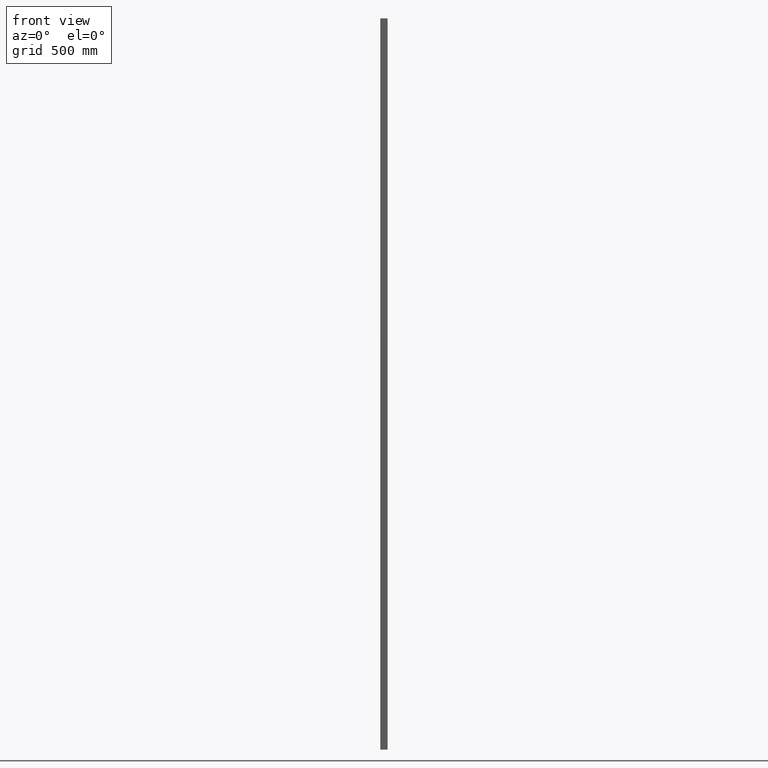
[diagram: clean part render]
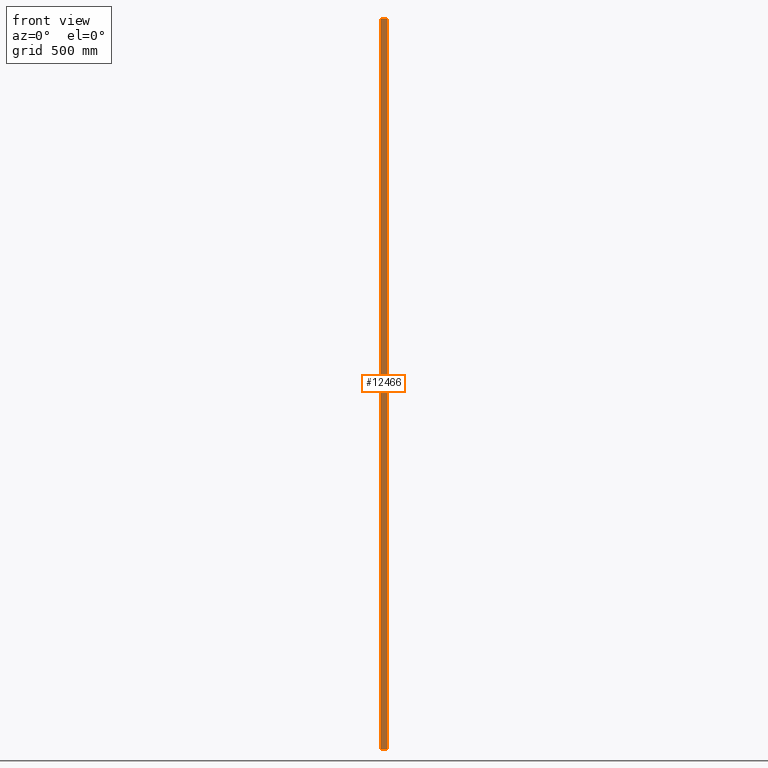
[diagram: same view with one face highlighted and labeled with its STEP entity id]
A machine part, front view. The second image highlights one B-rep face of the part: STEP entity #12466.
In plain terms, the highlighted planar face has unit normal (0, 1, -0).
Its self-contained STEP definition (entity closure, byte-faithful):
#736 = CARTESIAN_POINT ( 'NONE',  ( -11.99999999999999645, -15.00000000000000355, 1500.000000000000000 ) ) ;
#941 = LINE ( 'NONE', #15690, #16377 ) ;
#1060 = EDGE_CURVE ( 'NONE', #9276, #9264, #941, .T. ) ;
#1620 = ORIENTED_EDGE ( 'NONE', *, *, #13072, .T. ) ;
#2455 = EDGE_CURVE ( 'NONE', #14714, #9276, #9043, .T. ) ;
#4556 = CARTESIAN_POINT ( 'NONE',  ( -11.99999999999999645, -15.00000000000000355, 1500.000000000000000 ) ) ;
#5525 = FACE_OUTER_BOUND ( 'NONE', #12804, .T. ) ;
#5760 = DIRECTION ( 'NONE',  ( 1.000000000000000000, -7.228014483236695816E-17, 0.000000000000000000 ) ) ;
#6153 = AXIS2_PLACEMENT_3D ( 'NONE', #4556, #9689, #7191 ) ;
#7191 = DIRECTION ( 'NONE',  ( -1.000000000000000000, 7.228014483236695816E-17, 0.000000000000000000 ) ) ;
#7515 = EDGE_CURVE ( 'NONE', #14714, #14931, #11483, .T. ) ;
#8630 = VECTOR ( 'NONE', #5760, 1000.000000000000000 ) ;
#9043 = LINE ( 'NONE', #9612, #8630 ) ;
#9264 = VERTEX_POINT ( 'NONE', #17021 ) ;
#9276 = VERTEX_POINT ( 'NONE', #13020 ) ;
#9612 = CARTESIAN_POINT ( 'NONE',  ( -11.99999999999999645, -15.00000000000000355, 1500.000000000000000 ) ) ;
#9635 = ORIENTED_EDGE ( 'NONE', *, *, #7515, .T. ) ;
#9689 = DIRECTION ( 'NONE',  ( 7.228014483236695816E-17, 1.000000000000000000, -0.000000000000000000 ) ) ;
#10015 = CARTESIAN_POINT ( 'NONE',  ( -11.99999999999999645, -15.00000000000000355, 1500.000000000000000 ) ) ;
#10119 = VECTOR ( 'NONE', #17249, 1000.000000000000000 ) ;
#11337 = DIRECTION ( 'NONE',  ( -0.000000000000000000, -0.000000000000000000, -1.000000000000000000 ) ) ;
#11483 = LINE ( 'NONE', #736, #13172 ) ;
#11512 = DIRECTION ( 'NONE',  ( -0.000000000000000000, -0.000000000000000000, -1.000000000000000000 ) ) ;
#11808 = LINE ( 'NONE', #16138, #10119 ) ;
#12466 = ADVANCED_FACE ( 'NONE', ( #5525 ), #16579, .F. ) ;
#12804 = EDGE_LOOP ( 'NONE', ( #1620, #14915, #15664, #9635 ) ) ;
#13020 = CARTESIAN_POINT ( 'NONE',  ( 12.00000000000000355, -15.00000000000000533, 1500.000000000000000 ) ) ;
#13072 = EDGE_CURVE ( 'NONE', #14931, #9264, #11808, .T. ) ;
#13116 = CARTESIAN_POINT ( 'NONE',  ( -11.99999999999999645, -15.00000000000000355, -1500.000000000000000 ) ) ;
#13172 = VECTOR ( 'NONE', #11337, 1000.000000000000000 ) ;
#14714 = VERTEX_POINT ( 'NONE', #10015 ) ;
#14915 = ORIENTED_EDGE ( 'NONE', *, *, #1060, .F. ) ;
#14931 = VERTEX_POINT ( 'NONE', #13116 ) ;
#15664 = ORIENTED_EDGE ( 'NONE', *, *, #2455, .F. ) ;
#15690 = CARTESIAN_POINT ( 'NONE',  ( 12.00000000000000355, -15.00000000000000533, 1500.000000000000000 ) ) ;
#16138 = CARTESIAN_POINT ( 'NONE',  ( -11.99999999999999645, -15.00000000000000355, -1500.000000000000000 ) ) ;
#16377 = VECTOR ( 'NONE', #11512, 1000.000000000000000 ) ;
#16579 = PLANE ( 'NONE',  #6153 ) ;
#17021 = CARTESIAN_POINT ( 'NONE',  ( 12.00000000000000355, -15.00000000000000533, -1500.000000000000000 ) ) ;
#17249 = DIRECTION ( 'NONE',  ( 1.000000000000000000, -7.228014483236695816E-17, 0.000000000000000000 ) ) ;